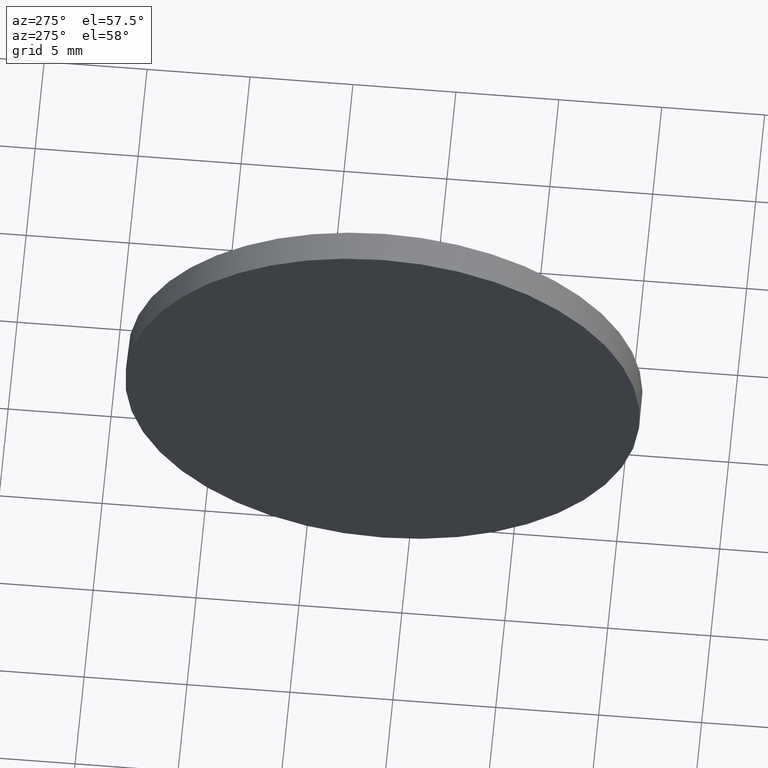
[diagram: clean part render]
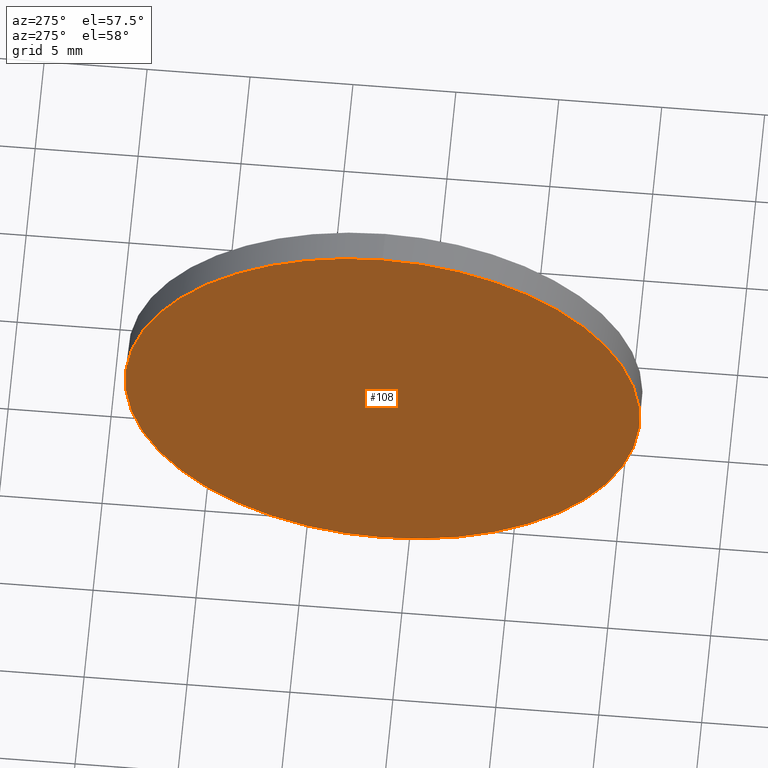
[diagram: same view with one face highlighted and labeled with its STEP entity id]
A machine part, auxiliary view. The second image highlights one B-rep face of the part: STEP entity #108.
In plain terms, the highlighted planar face has unit normal (1, 0, 0).
Its self-contained STEP definition (entity closure, byte-faithful):
#1 = VERTEX_POINT ( 'NONE', #86 ) ;
#13 = EDGE_CURVE ( 'NONE', #1, #160, #175, .T. ) ;
#27 = CARTESIAN_POINT ( 'NONE',  ( 408.8943879828856900, 126.2827390996670800, 0.0000000000000000000 ) ) ;
#35 = FACE_OUTER_BOUND ( 'NONE', #40, .T. ) ;
#40 = EDGE_LOOP ( 'NONE', ( #165, #162 ) ) ;
#53 = DIRECTION ( 'NONE',  ( 1.000000000000000000, 0.0000000000000000000, 0.0000000000000000000 ) ) ;
#65 = DIRECTION ( 'NONE',  ( -1.000000000000000000, -0.0000000000000000000, -0.0000000000000000000 ) ) ;
#86 = CARTESIAN_POINT ( 'NONE',  ( 408.8943879828856900, 126.2827390996670800, 12.50000000000001100 ) ) ;
#90 = DIRECTION ( 'NONE',  ( 0.0000000000000000000, 0.0000000000000000000, 1.000000000000000000 ) ) ;
#104 = CARTESIAN_POINT ( 'NONE',  ( 408.8943879828856900, 126.2827390996670800, 0.0000000000000000000 ) ) ;
#108 = ADVANCED_FACE ( 'NONE', ( #35 ), #131, .F. ) ;
#116 = AXIS2_PLACEMENT_3D ( 'NONE', #127, #53, #170 ) ;
#118 = CIRCLE ( 'NONE', #149, 12.50000000000001100 ) ;
#126 = AXIS2_PLACEMENT_3D ( 'NONE', #104, #65, #90 ) ;
#127 = CARTESIAN_POINT ( 'NONE',  ( 408.8943879828856900, 126.2827390996670800, 0.0000000000000000000 ) ) ;
#131 = PLANE ( 'NONE',  #116 ) ;
#133 = DIRECTION ( 'NONE',  ( -1.000000000000000000, -0.0000000000000000000, -0.0000000000000000000 ) ) ;
#134 = DIRECTION ( 'NONE',  ( 0.0000000000000000000, 0.0000000000000000000, 1.000000000000000000 ) ) ;
#137 = EDGE_CURVE ( 'NONE', #160, #1, #118, .T. ) ;
#149 = AXIS2_PLACEMENT_3D ( 'NONE', #27, #133, #134 ) ;
#160 = VERTEX_POINT ( 'NONE', #177 ) ;
#162 = ORIENTED_EDGE ( 'NONE', *, *, #137, .T. ) ;
#165 = ORIENTED_EDGE ( 'NONE', *, *, #13, .T. ) ;
#170 = DIRECTION ( 'NONE',  ( 0.0000000000000000000, 0.0000000000000000000, -1.000000000000000000 ) ) ;
#175 = CIRCLE ( 'NONE', #126, 12.50000000000001100 ) ;
#177 = CARTESIAN_POINT ( 'NONE',  ( 408.8943879828856900, 126.2827390996670800, -12.50000000000001100 ) ) ;